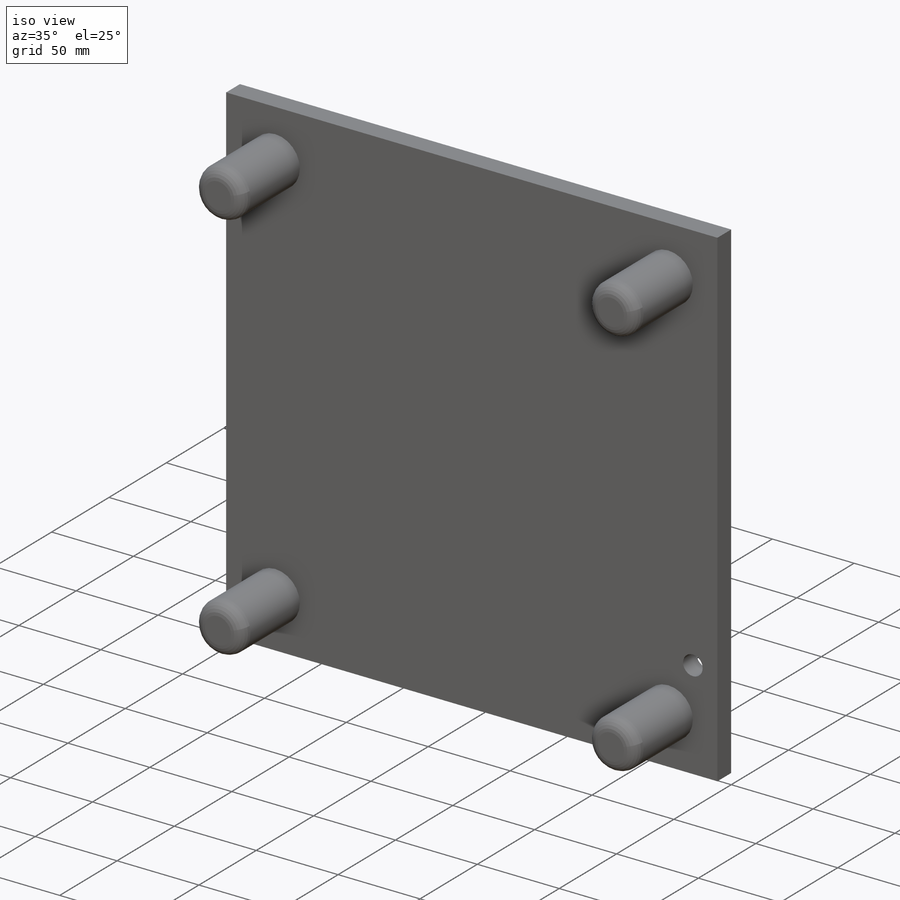
[diagram: iso view]
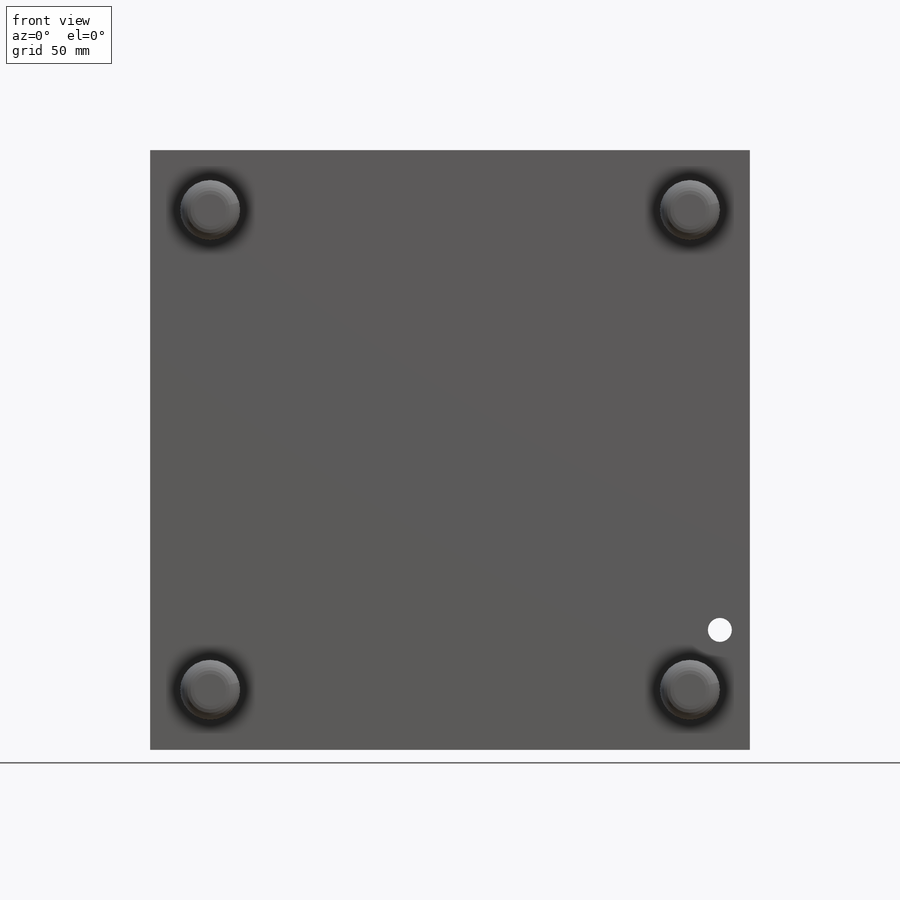
[diagram: front view]
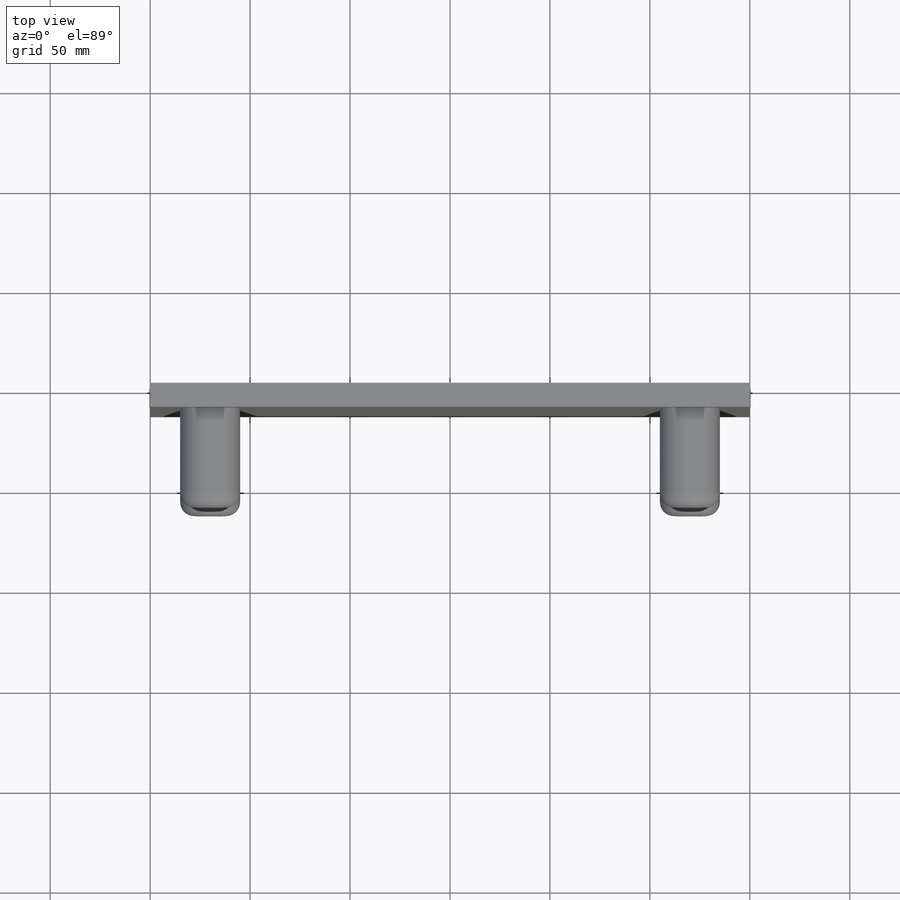
[diagram: top view]
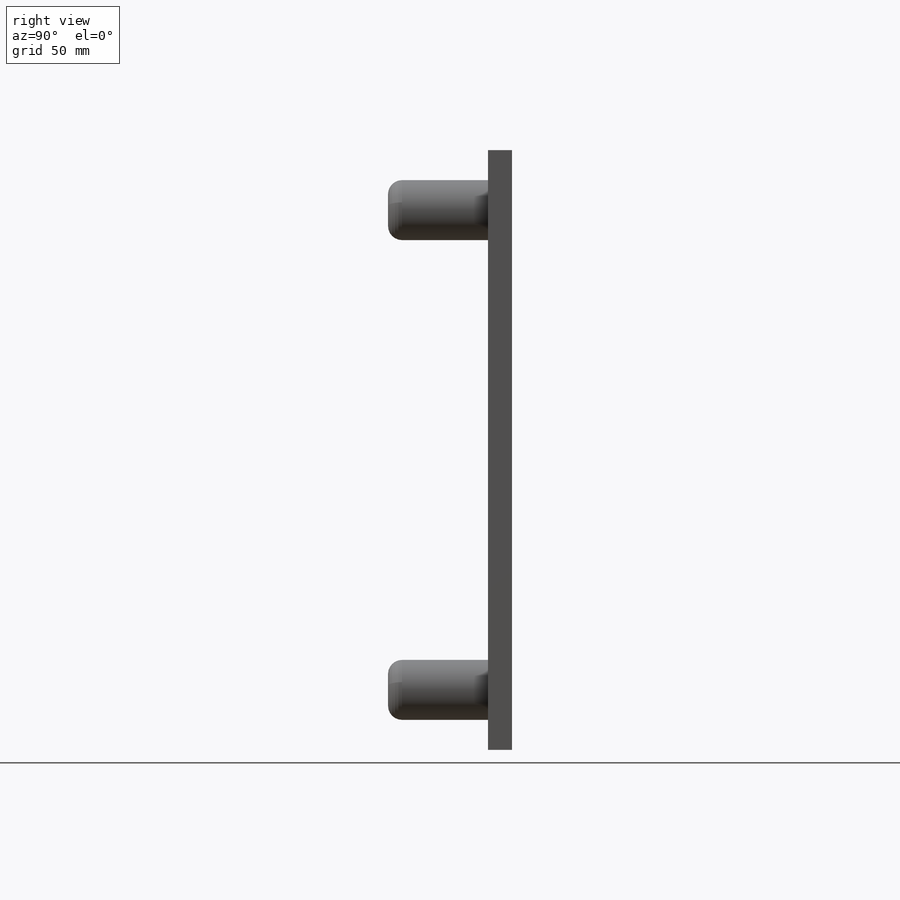
[diagram: right view]
SOLIDWORKS PART (.sldprt)
format: sldprt  version: not decoded by parser v0  size: 219,136 bytes
history: native  units: mm
features: sketch x4, extrude x2, material x1, fillet x1, hole x1 (+16 scaffold rows collapsed)
feature tree (25):
  scaffold x16  (default folders/planes/origin — collapsed)
  material  "1060 Alloy"
  sketch  "Sketch2"  dims[D1=300.0mm D2=300.0mm]
  extrude  "Boss-Extrude1"  Depth=12mm
  sketch  "Sketch3"  dims[c1.D1=~13.117814mm c1.D3=30.0mm c1.D2=120.0mm c1.D4=150.0mm c2.D1=30.0mm c2.D2=30.0mm c2.D4=2.0 c2.D5=2.0]
  extrude  "Boss-Extrude2"  Depth=50mm
  fillet  "Fillet1"  Radius=7mm
  hole  "Ø12.0 (12) Diameter Hole1"  Diameter=12mm Depth=12mm
  sketch  "Sketch5"  dims[c1.D1=15.0mm c1.D2=~11.656902mm c2.D2=90.0deg c3.D2=60.0mm]
  sketch  "Sketch6"  dims[hole-wizard template sketch: 59 standard entries collapsed; hole parameters kept: c18.Thru Hole Dia.=12.0mm c18.Thru Hole Depth=12.0mm]
decode coverage: 8 of 8 modeling features carry decoded parameters
note: ~ marks probable driven/reference dimensions
note: suppression state not decoded; provenance and decode notes live in map.json
